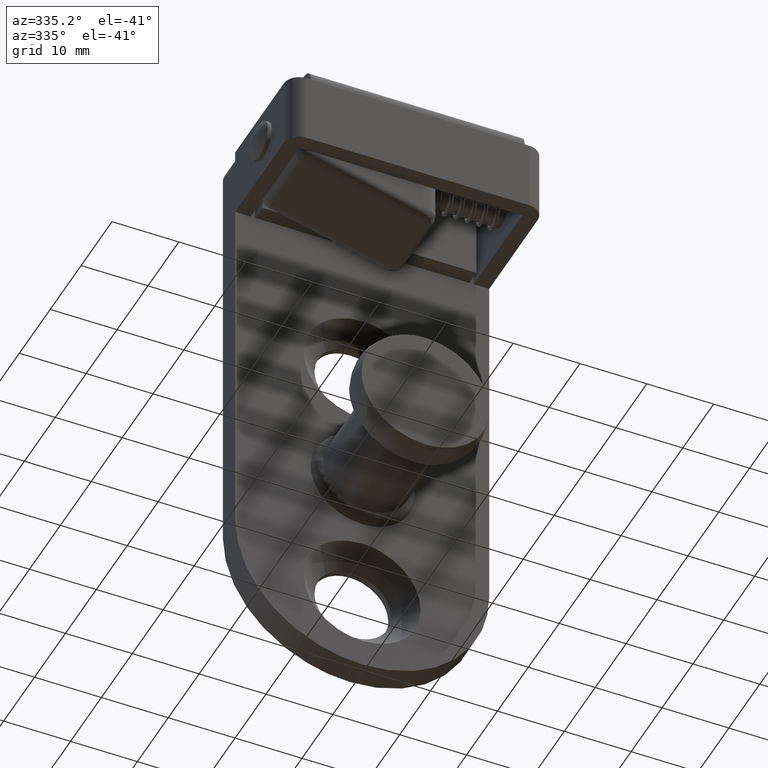
[diagram: clean part render]
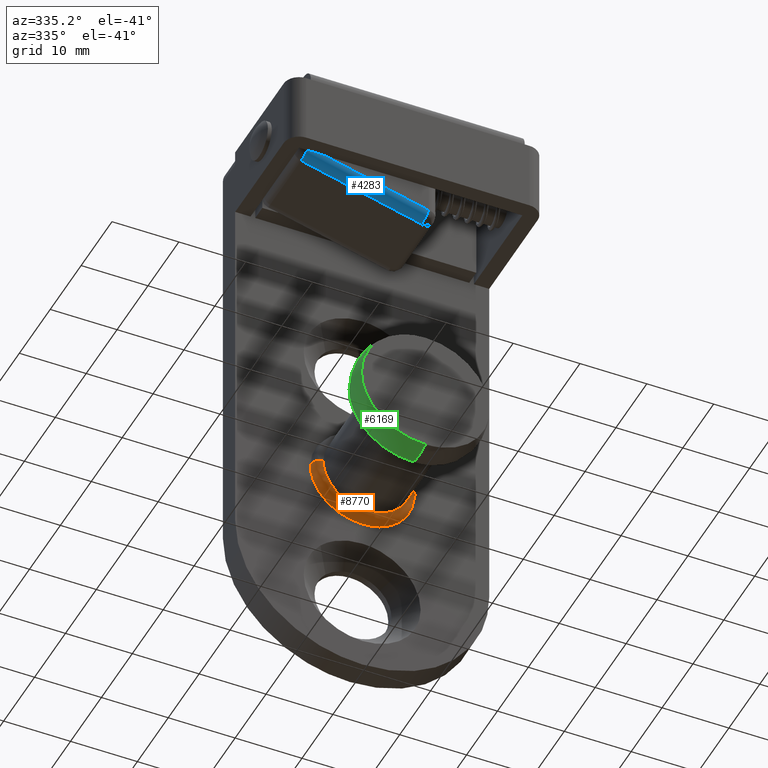
[diagram: same view with three faces highlighted in distinct colors, each labeled with its STEP entity id]
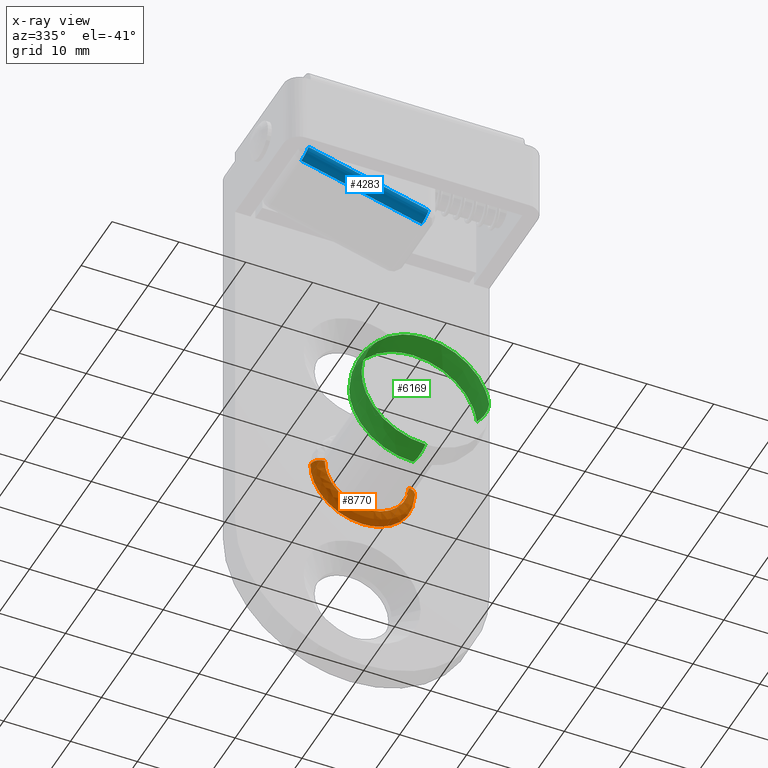
[diagram: x-ray of the same camera — body ghosted, the three highlighted faces saturated]
A machine part, auxiliary view with three faces highlighted in distinct colors.
The next image is the same camera in x-ray (body ghosted, the three faces saturated) — at least one of them is partly hidden behind the body in this view.
Their STEP definitions:

[orange] entity #8770 — the highlighted face is a freeform B-spline surface patch.
#8654=CARTESIAN_POINT('',(7.743903080807956,-20.604586283114802,0.194666501291950));
#8655=CARTESIAN_POINT('',(7.938569582099905,-20.604586283114809,-7.549236579516001));
#8656=CARTESIAN_POINT('',(0.194666501291952,-20.604586283114802,-7.743903080807956));
#8657=CARTESIAN_POINT('',(-7.549236579516001,-20.604586283114809,-7.938569582099905));
#8658=CARTESIAN_POINT('',(-7.743903080807956,-20.604586283114802,-0.194666501291953));
#8659=CARTESIAN_POINT('',(7.864124515082102,-18.883996324391845,0.197688631830806));
#8660=CARTESIAN_POINT('',(8.061813146912911,-18.883996324391852,-7.666435883251293));
#8661=CARTESIAN_POINT('',(0.197688631830808,-18.883996324391845,-7.864124515082102));
#8662=CARTESIAN_POINT('',(-7.666435883251293,-18.883996324391852,-8.061813146912911));
#8663=CARTESIAN_POINT('',(-7.864124515082102,-18.883996324391845,-0.197688631830808));
#8664=CARTESIAN_POINT('',(6.144033042778243,-19.003611483327578,0.154448913394069));
#8665=CARTESIAN_POINT('',(6.298481956172312,-19.003611483327571,-5.989584129384169));
#8666=CARTESIAN_POINT('',(0.154448913394071,-19.003611483327578,-6.144033042778243));
#8667=CARTESIAN_POINT('',(-5.989584129384169,-19.003611483327571,-6.298481956172314));
#8668=CARTESIAN_POINT('',(-6.144033042778243,-19.003611483327578,-0.154448913394071));
#8676=(BOUNDED_SURFACE()B_SPLINE_SURFACE(2,2,((#8654,#8659,#8664),(#8655,#8660,#8665),(#8656,#8661,#8666),(#8657,#8662,#8667),(#8658,#8663,#8668)),.UNSPECIFIED.,.F.,.F.,.U.)B_SPLINE_SURFACE_WITH_KNOTS((3,2,3),(3,3),(0.0,12.834572022482750,25.669144044965510),(0.0,2.733555654692055),.UNSPECIFIED.)GEOMETRIC_REPRESENTATION_ITEM()RATIONAL_B_SPLINE_SURFACE(((0.910892943119429,0.599412915015239,0.915966658337646),(0.644098577014720,0.423848936938071,0.647686235451331),(0.910892943119429,0.599412915015239,0.915966658337646),(0.644098577014720,0.423848936938071,0.647686235451331),(0.910892943119429,0.599412915015239,0.915966658337646)))REPRESENTATION_ITEM('')SURFACE());
#8677=CARTESIAN_POINT('',(0.0,-19.0,-6.250000000000000));
#8678=VERTEX_POINT('',#8677);
#8679=CARTESIAN_POINT('',(6.248026187059553,-19.0,0.157063097178439));
#8680=VERTEX_POINT('',#8679);
#8681=CARTESIAN_POINT('',(0.0,-19.0,-6.250000000000000));
#8682=CARTESIAN_POINT('',(0.363647738622659,-19.000000000000028,-6.250023410204353));
#8683=CARTESIAN_POINT('',(1.194865805139255,-18.999999999999979,-6.177298460048187));
#8684=CARTESIAN_POINT('',(2.348182056223687,-19.0,-5.837255559385980));
#8685=CARTESIAN_POINT('',(3.293281001040213,-19.000000000000039,-5.337545782809442));
#8686=CARTESIAN_POINT('',(4.071308192351541,-18.999999999999979,-4.770730197503986));
#8687=CARTESIAN_POINT('',(4.649883725434911,-19.000000000000011,-4.206287154281666));
#8688=CARTESIAN_POINT('',(5.240359180439091,-18.999999999999989,-3.446455057360705));
#8689=CARTESIAN_POINT('',(5.691863143000726,-19.000000000000011,-2.652781000148939));
#8690=CARTESIAN_POINT('',(6.146127573925424,-19.0,-1.404364202713796));
#8691=CARTESIAN_POINT('',(6.263968059041154,-19.000000000000011,-0.466179734510029));
#8692=CARTESIAN_POINT('',(6.248026187059553,-19.0,0.157063097178439));
#8693=B_SPLINE_CURVE_WITH_KNOTS('',3,(#8681,#8682,#8683,#8684,#8685,#8686,#8687,#8688,#8689,#8690,#8691,#8692),.UNSPECIFIED.,.F.,.U.,(4,1,1,1,1,1,1,1,1,4),(0.000000092122304,1.090952993461634,2.493655821424150,3.584632068724023,4.285975122106478,5.376932615248822,6.000350831900249,7.169253716064120,8.104390393738409,9.974621281504941),.UNSPECIFIED.);
#8694=EDGE_CURVE('',#8678,#8680,#8693,.T.);
#8695=ORIENTED_EDGE('',*,*,#8694,.T.);
#8696=CARTESIAN_POINT('',(7.747552466945573,-20.499999999605251,0.194758239685922));
#8697=VERTEX_POINT('',#8696);
#8698=CARTESIAN_POINT('',(7.747552466945573,-20.499999999605251,0.194758239685922));
#8699=CARTESIAN_POINT('',(7.747602498268306,-20.352736018092791,0.194759497375005));
#8700=CARTESIAN_POINT('',(7.700256743897108,-20.033677197812160,0.193569318195019));
#8701=CARTESIAN_POINT('',(7.476431498184625,-19.588657383701388,0.187942791573186));
#8702=CARTESIAN_POINT('',(7.115701081276010,-19.245186267760989,0.178874738112205));
#8703=CARTESIAN_POINT('',(6.689647096508735,-19.043713103499819,0.168164578585763));
#8704=CARTESIAN_POINT('',(6.395246008304131,-18.999940478670709,0.160763914040518));
#8705=CARTESIAN_POINT('',(6.248026187059553,-19.0,0.157063097178439));
#8706=B_SPLINE_CURVE_WITH_KNOTS('',3,(#8698,#8699,#8700,#8701,#8702,#8703,#8704,#8705),.UNSPECIFIED.,.F.,.U.,(4,1,1,1,1,4),(0.000000184373507,0.441795600038105,0.957252305395147,1.472654178376287,1.914457519521531,2.356253615091244),.UNSPECIFIED.);
#8707=EDGE_CURVE('',#8697,#8680,#8706,.T.);
#8708=ORIENTED_EDGE('',*,*,#8707,.F.);
#8709=CARTESIAN_POINT('',(0.0,-20.500000000000000,-7.750000000000000));
#8710=VERTEX_POINT('',#8709);
#8711=CARTESIAN_POINT('',(0.0,-20.500000000000000,-7.750000000000000));
#8712=CARTESIAN_POINT('',(0.644206839376240,-20.500000000024301,-7.750164745903437));
#8713=CARTESIAN_POINT('',(1.868067146289100,-20.500000000057099,-7.596497234715505));
#8714=CARTESIAN_POINT('',(3.596207942557856,-20.500000000065771,-6.943029406952882));
#8715=CARTESIAN_POINT('',(5.022503330589427,-20.500000000036540,-5.983345671701727));
#8716=CARTESIAN_POINT('',(6.227189920482869,-20.499999999972371,-4.716742551005802));
#8717=CARTESIAN_POINT('',(7.013833907494797,-20.499999999889489,-3.410917319777496));
#8718=CARTESIAN_POINT('',(7.621106304073136,-20.499999999767581,-1.741385816209622));
#8719=CARTESIAN_POINT('',(7.767391067972867,-20.499999999672951,-0.578076465125332));
#8720=CARTESIAN_POINT('',(7.747552466945573,-20.499999999605251,0.194758239685922));
#8721=B_SPLINE_CURVE_WITH_KNOTS('',3,(#8711,#8712,#8713,#8714,#8715,#8716,#8717,#8718,#8719,#8720),.UNSPECIFIED.,.F.,.U.,(4,1,1,1,1,1,1,4),(0.000000067723867,1.932577127547573,3.671909309581551,5.507865291499806,7.053902776464217,8.889876185486379,10.049440573328519,12.368530387100360),.UNSPECIFIED.);
#8722=EDGE_CURVE('',#8710,#8697,#8721,.T.);
#8723=ORIENTED_EDGE('',*,*,#8722,.F.);
#8724=CARTESIAN_POINT('',(-7.747552466945573,-20.499999999605251,-0.194758239685920));
#8725=VERTEX_POINT('',#8724);
#8726=CARTESIAN_POINT('',(-7.747552466945573,-20.499999999605251,-0.194758239685920));
#8727=CARTESIAN_POINT('',(-7.735841853968219,-20.499999999629669,-0.662534714780969));
#8728=CARTESIAN_POINT('',(-7.641743150354124,-20.499999999672021,-1.471475035354460));
#8729=CARTESIAN_POINT('',(-7.296559278134610,-20.499999999736431,-2.705954566221928));
#8730=CARTESIAN_POINT('',(-6.826823123756314,-20.499999999790010,-3.731087190038060));
#8731=CARTESIAN_POINT('',(-6.158250139387877,-20.499999999843279,-4.750185974933385));
#8732=CARTESIAN_POINT('',(-5.451993253101002,-20.499999999884832,-5.546529566200734));
#8733=CARTESIAN_POINT('',(-4.448418067795774,-20.499999999929251,-6.392550793728908));
#8734=CARTESIAN_POINT('',(-3.339243176506296,-20.499999999962899,-7.044433176967031));
#8735=CARTESIAN_POINT('',(-1.777987556215333,-20.499999999992781,-7.603927971450390));
#8736=CARTESIAN_POINT('',(-0.686322905745467,-20.499999999999169,-7.750251968160448));
#8737=CARTESIAN_POINT('',(0.0,-20.500000000000000,-7.750000000000000));
#8738=B_SPLINE_CURVE_WITH_KNOTS('',3,(#8726,#8727,#8728,#8729,#8730,#8731,#8732,#8733,#8734,#8735,#8736,#8737),.UNSPECIFIED.,.F.,.U.,(4,1,1,1,1,1,1,1,1,4),(0.000000065616353,1.403767719297109,2.433222107686204,3.837022643257766,4.772869765925004,6.083049073312272,7.018906436373790,8.703466534979844,9.920091777891081,11.978965564778560),.UNSPECIFIED.);
#8739=EDGE_CURVE('',#8725,#8710,#8738,.T.);
#8740=ORIENTED_EDGE('',*,*,#8739,.F.);
#8741=CARTESIAN_POINT('',(-6.248026187059553,-19.0,-0.157063097178438));
#8742=VERTEX_POINT('',#8741);
#8743=CARTESIAN_POINT('',(-7.747552466945573,-20.499999999605251,-0.194758239685920));
#8744=CARTESIAN_POINT('',(-7.747916670189446,-20.279027370564631,-0.194767395039415));
#8745=CARTESIAN_POINT('',(-7.675777116006493,-19.960264735556240,-0.192953948478430));
#8746=CARTESIAN_POINT('',(-7.466533685867479,-19.611286658526691,-0.187693980031293));
#8747=CARTESIAN_POINT('',(-7.230078610742960,-19.343594653280320,-0.181749964329138));
#8748=CARTESIAN_POINT('',(-6.836745141300082,-19.080682676385290,-0.171862334227229));
#8749=CARTESIAN_POINT('',(-6.456611345321610,-18.999739723792420,-0.162306517964781));
#8750=CARTESIAN_POINT('',(-6.248026187059553,-19.0,-0.157063097178438));
#8751=B_SPLINE_CURVE_WITH_KNOTS('',3,(#8743,#8744,#8745,#8746,#8747,#8748,#8749,#8750),.UNSPECIFIED.,.F.,.U.,(4,1,1,1,1,4),(0.000000184373343,0.662701865398353,0.957252305395032,1.214917340404249,1.730372234608048,2.356253615091245),.UNSPECIFIED.);
#8752=EDGE_CURVE('',#8725,#8742,#8751,.T.);
#8753=ORIENTED_EDGE('',*,*,#8752,.T.);
#8754=CARTESIAN_POINT('',(-6.248026187059553,-19.0,-0.157063097178438));
#8755=CARTESIAN_POINT('',(-6.237347371320497,-18.999999999999989,-0.584603518289695));
#8756=CARTESIAN_POINT('',(-6.146991840802349,-19.000000000000011,-1.286923340059623));
#8757=CARTESIAN_POINT('',(-5.807806684223817,-19.0,-2.396022173269597));
#8758=CARTESIAN_POINT('',(-5.232679727615854,-19.000000000000050,-3.523075896266489));
#8759=CARTESIAN_POINT('',(-4.392187090866992,-18.999999999999972,-4.506103020857964));
#8760=CARTESIAN_POINT('',(-3.478430661201430,-19.000000000000039,-5.221168506076623));
#8761=CARTESIAN_POINT('',(-2.555137154484456,-18.999999999999911,-5.741620912268693));
#8762=CARTESIAN_POINT('',(-1.383613909325025,-19.000000000000110,-6.145580355419567));
#8763=CARTESIAN_POINT('',(-0.477996682075472,-18.999999999999918,-6.250105132582778));
#8764=CARTESIAN_POINT('',(0.0,-19.0,-6.250000000000000));
#8765=B_SPLINE_CURVE_WITH_KNOTS('',3,(#8754,#8755,#8756,#8757,#8758,#8759,#8760,#8761,#8762,#8763,#8764),.UNSPECIFIED.,.F.,.U.,(4,1,1,1,1,1,1,1,4),(0.000000093642633,1.283010057639549,2.113219665626913,3.471743000626955,5.056618023705850,5.962302974472753,6.943447627734304,8.226485653632615,9.660456101892111),.UNSPECIFIED.);
#8766=EDGE_CURVE('',#8742,#8678,#8765,.T.);
#8767=ORIENTED_EDGE('',*,*,#8766,.T.);
#8768=EDGE_LOOP('',(#8695,#8708,#8723,#8740,#8753,#8767));
#8769=FACE_OUTER_BOUND('',#8768,.T.);
#8770=ADVANCED_FACE('',(#8769),#8676,.T.);

[blue] entity #4283 — the highlighted face is a freeform B-spline surface patch.
#4061=CARTESIAN_POINT('',(-2.799999999999900,-4.999999999999800,37.500000518874650));
#4062=VERTEX_POINT('',#4061);
#4157=CARTESIAN_POINT('',(-2.409798649836235,-6.499999999999840,36.051641824928147));
#4158=VERTEX_POINT('',#4157);
#4173=CARTESIAN_POINT('',(-2.409798649836235,-6.499999999999840,36.051641824928147));
#4174=CARTESIAN_POINT('',(-2.409780714139394,-6.352729703697343,36.051575250780068));
#4175=CARTESIAN_POINT('',(-2.419281245891722,-6.107334910080736,36.086839551518302));
#4176=CARTESIAN_POINT('',(-2.454881978228224,-5.776942802803113,36.218983200351829));
#4177=CARTESIAN_POINT('',(-2.502122412138076,-5.512234239072540,36.394331371572861));
#4178=CARTESIAN_POINT('',(-2.563307266737428,-5.293769338844412,36.621438776659083));
#4179=CARTESIAN_POINT('',(-2.659597960714033,-5.071802389040578,36.978852875069180));
#4180=CARTESIAN_POINT('',(-2.742517260797841,-4.999640785844679,37.286634714168351));
#4181=CARTESIAN_POINT('',(-2.799999999999900,-4.999999999999800,37.500000518874650));
#4182=B_SPLINE_CURVE_WITH_KNOTS('',3,(#4173,#4174,#4175,#4176,#4177,#4178,#4179,#4180,#4181),.UNSPECIFIED.,.F.,.U.,(4,1,1,1,1,1,4),(0.000000184366868,0.441795600299064,0.736332833688200,1.067703927126058,1.399000968415164,1.693552169797418,2.356253616518344),.UNSPECIFIED.);
#4183=EDGE_CURVE('',#4158,#4062,#4182,.T.);
#4241=CARTESIAN_POINT('',(16.039829964939930,-6.565429081047842,41.023622541474673));
#4242=CARTESIAN_POINT('',(-2.871420035060055,-6.565429081047842,35.928755286474761));
#4243=CARTESIAN_POINT('',(16.058732971818966,-4.901095894337844,40.953457908924044));
#4244=CARTESIAN_POINT('',(-2.852517028181016,-4.901095894337844,35.858590653924146));
#4245=CARTESIAN_POINT('',(15.626178777448070,-5.002797802366981,42.559022901862562));
#4246=CARTESIAN_POINT('',(-3.285071222551912,-5.002797802366981,37.464155646862672));
#4254=(BOUNDED_SURFACE()B_SPLINE_SURFACE(1,2,((#4241,#4243,#4245),(#4242,#4244,#4246)),.UNSPECIFIED.,.F.,.F.,.U.)B_SPLINE_SURFACE_WITH_KNOTS((2,2),(3,3),(0.0,19.585531621801081),(0.0,2.671372111851235),.UNSPECIFIED.)GEOMETRIC_REPRESENTATION_ITEM()RATIONAL_B_SPLINE_SURFACE(((1.0,0.669130606358859,1.0),(1.0,0.669130606358859,1.0)))REPRESENTATION_ITEM('')SURFACE());
#4255=CARTESIAN_POINT('',(15.590201350163751,-6.499999999999840,40.901009824928053));
#4256=VERTEX_POINT('',#4255);
#4257=CARTESIAN_POINT('',(15.199999999999999,-4.999999999999800,42.349368518874599));
#4258=VERTEX_POINT('',#4257);
#4259=CARTESIAN_POINT('',(15.590201350163751,-6.499999999999840,40.901009824928053));
#4260=CARTESIAN_POINT('',(15.590231640003260,-6.328185119569247,40.900897394378028));
#4261=CARTESIAN_POINT('',(15.574682858486890,-5.984617440391684,40.958611733090613));
#4262=CARTESIAN_POINT('',(15.514010214575499,-5.572891134692486,41.183817902308192));
#4263=CARTESIAN_POINT('',(15.425479434715360,-5.248860064844978,41.512428566106131));
#4264=CARTESIAN_POINT('',(15.321313183279679,-5.047282691286661,41.899075346850402));
#4265=CARTESIAN_POINT('',(15.238306852318489,-4.999963704525126,42.207180229239043));
#4266=CARTESIAN_POINT('',(15.199999999999999,-4.999999999999800,42.349368518874599));
#4267=B_SPLINE_CURVE_WITH_KNOTS('',3,(#4259,#4260,#4261,#4262,#4263,#4264,#4265,#4266),.UNSPECIFIED.,.F.,.U.,(4,1,1,1,1,4),(0.000000184364134,0.515426151925846,1.030868679268119,1.399000968415283,1.914457520683398,2.356253616518462),.UNSPECIFIED.);
#4268=EDGE_CURVE('',#4256,#4258,#4267,.T.);
#4269=ORIENTED_EDGE('',*,*,#4268,.F.);
#4270=CARTESIAN_POINT('',(15.590201350163751,-6.499999999999840,40.901009824928053));
#4271=CARTESIAN_POINT('',(-2.409798649836235,-6.499999999999840,36.051641824928147));
#4272=QUASI_UNIFORM_CURVE('',1,(#4270,#4271),.UNSPECIFIED.,.F.,.U.);
#4273=EDGE_CURVE('',#4256,#4158,#4272,.T.);
#4274=ORIENTED_EDGE('',*,*,#4273,.T.);
#4275=ORIENTED_EDGE('',*,*,#4183,.T.);
#4276=CARTESIAN_POINT('',(-2.799999999999900,-4.999999999999800,37.500000518874650));
#4277=CARTESIAN_POINT('',(15.199999999999999,-4.999999999999800,42.349368518874599));
#4278=QUASI_UNIFORM_CURVE('',1,(#4276,#4277),.UNSPECIFIED.,.F.,.U.);
#4279=EDGE_CURVE('',#4062,#4258,#4278,.T.);
#4280=ORIENTED_EDGE('',*,*,#4279,.T.);
#4281=EDGE_LOOP('',(#4269,#4274,#4275,#4280));
#4282=FACE_OUTER_BOUND('',#4281,.T.);
#4283=ADVANCED_FACE('',(#4282),#4254,.T.);

[green] entity #6169 — the highlighted face is a freeform B-spline surface patch.
#6001=CARTESIAN_POINT('',(-9.427593990260013,0.197785024118212,1.095880118555956));
#6002=CARTESIAN_POINT('',(-9.933116592324145,-0.842183123326224,1.154642955569844));
#6003=CARTESIAN_POINT('',(-9.933116592324142,-2.0,1.154642955569843));
#6004=CARTESIAN_POINT('',(-9.933116592324142,-3.157821938125225,1.154642955569843));
#6005=CARTESIAN_POINT('',(-9.427589795357550,-4.197793653909067,1.095879630933110));
#6006=CARTESIAN_POINT('',(-8.451721901897127,0.197785024118211,9.491073789589512));
#6007=CARTESIAN_POINT('',(-8.904916688624631,-0.842183123326224,10.000000279577609));
#6008=CARTESIAN_POINT('',(-8.904916688624633,-2.000000000000000,10.000000279577611));
#6009=CARTESIAN_POINT('',(-8.904916688624633,-3.157821938125227,10.000000279577613));
#6010=CARTESIAN_POINT('',(-8.451718141218731,-4.197793653909069,9.491069566441073));
#6011=CARTESIAN_POINT('',(0.0,0.197785024118211,9.491073789589512));
#6012=CARTESIAN_POINT('',(0.0,-0.842183123326224,10.000000279577611));
#6013=CARTESIAN_POINT('',(0.0,-2.0,10.000000279577611));
#6014=CARTESIAN_POINT('',(0.0,-3.157821938125226,10.000000279577611));
#6015=CARTESIAN_POINT('',(0.0,-4.197793653909068,9.491069566441073));
#6016=CARTESIAN_POINT('',(9.491073789589510,0.197785024118211,9.491073789589510));
#6017=CARTESIAN_POINT('',(10.000000279577609,-0.842183123326224,10.000000279577609));
#6018=CARTESIAN_POINT('',(10.000000279577609,-2.000000000000000,10.000000279577609));
#6019=CARTESIAN_POINT('',(10.000000279577611,-3.157821938125226,10.000000279577611));
#6020=CARTESIAN_POINT('',(9.491069566441073,-4.197793653909069,9.491069566441073));
#6021=CARTESIAN_POINT('',(9.491073789589512,0.197785024118211,0.0));
#6022=CARTESIAN_POINT('',(10.000000279577611,-0.842183123326224,0.0));
#6023=CARTESIAN_POINT('',(10.000000279577611,-2.0,0.0));
#6024=CARTESIAN_POINT('',(10.000000279577611,-3.157821938125226,0.0));
#6025=CARTESIAN_POINT('',(9.491069566441073,-4.197793653909068,0.0));
#6026=CARTESIAN_POINT('',(9.491073789589510,0.197785024118211,-9.491073789589510));
#6027=CARTESIAN_POINT('',(10.000000279577609,-0.842183123326224,-10.000000279577609));
#6028=CARTESIAN_POINT('',(10.000000279577609,-2.000000000000000,-10.000000279577609));
#6029=CARTESIAN_POINT('',(10.000000279577611,-3.157821938125226,-10.000000279577611));
#6030=CARTESIAN_POINT('',(9.491069566441073,-4.197793653909069,-9.491069566441073));
#6031=CARTESIAN_POINT('',(0.0,0.197785024118211,-9.491073789589512));
#6032=CARTESIAN_POINT('',(0.0,-0.842183123326224,-10.000000279577611));
#6033=CARTESIAN_POINT('',(0.0,-2.0,-10.000000279577611));
#6034=CARTESIAN_POINT('',(0.0,-3.157821938125226,-10.000000279577611));
#6035=CARTESIAN_POINT('',(0.0,-4.197793653909068,-9.491069566441073));
#6043=(BOUNDED_SURFACE()B_SPLINE_SURFACE(2,2,((#6001,#6006,#6011,#6016,#6021,#6026,#6031),(#6002,#6007,#6012,#6017,#6022,#6027,#6032),(#6003,#6008,#6013,#6018,#6023,#6028,#6033),(#6004,#6009,#6014,#6019,#6024,#6029,#6034),(#6005,#6010,#6015,#6020,#6025,#6030,#6035)),.UNSPECIFIED.,.F.,.F.,.U.)B_SPLINE_SURFACE_WITH_KNOTS((3,2,3),(3,2,2,3),(0.0,2.408565126227558,4.817139860176102),(0.0,15.243058810446980,31.811601768590130,48.380144726733292),.UNSPECIFIED.)GEOMETRIC_REPRESENTATION_ITEM()RATIONAL_B_SPLINE_SURFACE(((0.839457697984613,0.640887103040669,0.877280692604679,0.620331126744800,0.877280692604679,0.620331126744800,0.877280692604679),(0.873146664941997,0.666607070216604,0.912487565251705,0.645226145137883,0.912487565251705,0.645226145137883,0.912487565251705),(0.956886097073711,0.730538251261237,1.0,0.707106781186548,1.0,0.707106781186548,1.0),(0.873146330906977,0.666606815196326,0.912487216166249,0.645225898297189,0.912487216166249,0.645225898297189,0.912487216166249),(0.839457429216098,0.640886897848347,0.877280411726406,0.620330928133868,0.877280411726406,0.620330928133868,0.877280411726406)))REPRESENTATION_ITEM('')SURFACE());
#6044=CARTESIAN_POINT('',(0.0,1.332268E-015,9.582576000000001));
#6045=VERTEX_POINT('',#6044);
#6046=CARTESIAN_POINT('',(-9.518482005962820,0.000009646163668,1.106427771368448));
#6047=VERTEX_POINT('',#6046);
#6048=CARTESIAN_POINT('',(0.0,1.332268E-015,9.582576000000001));
#6049=CARTESIAN_POINT('',(-0.580963474674620,0.000000328354320,9.582602913324131));
#6050=CARTESIAN_POINT('',(-1.924497097848563,0.000001149360436,9.460167373555237));
#6051=CARTESIAN_POINT('',(-3.810345442513579,0.000002510171228,8.874244380055661));
#6052=CARTESIAN_POINT('',(-5.427435989750196,0.000003887278528,7.954135447116150));
#6053=CARTESIAN_POINT('',(-6.777841323131711,0.000005208942390,6.844702067845705));
#6054=CARTESIAN_POINT('',(-7.844605193244525,0.000006440521721,5.595728289536494));
#6055=CARTESIAN_POINT('',(-8.647793452491657,0.000007592596517,4.208727028889354));
#6056=CARTESIAN_POINT('',(-9.224193134296934,0.000008650708416,2.753735229824964));
#6057=CARTESIAN_POINT('',(-9.447288800210906,0.000009297306760,1.719594035831562));
#6058=CARTESIAN_POINT('',(-9.518482005962820,0.000009646163668,1.106427771368448));
#6059=B_SPLINE_CURVE_WITH_KNOTS('',3,(#6048,#6049,#6050,#6051,#6052,#6053,#6054,#6055,#6056,#6057,#6058),.UNSPECIFIED.,.F.,.U.,(4,1,1,1,1,1,1,1,4),(0.000000047675796,1.742915152031232,4.030532910760977,5.882411928035331,7.298490880151539,9.259313345171117,10.784384975597870,12.091597122951770,13.943446160038560),.UNSPECIFIED.);
#6060=EDGE_CURVE('',#6045,#6047,#6059,.T.);
#6061=ORIENTED_EDGE('',*,*,#6060,.T.);
#6062=CARTESIAN_POINT('',(-9.518478759921567,-4.000017176094405,1.106427233942358));
#6063=VERTEX_POINT('',#6062);
#6064=CARTESIAN_POINT('',(-9.518482005962820,0.000009646163668,1.106427771368448));
#6065=CARTESIAN_POINT('',(-9.697468114240671,-0.412470819349036,1.127233403605641));
#6066=CARTESIAN_POINT('',(-9.879041109264636,-1.057555048069768,1.148339730635033));
#6067=CARTESIAN_POINT('',(-9.949691801522150,-1.978361075981315,1.156552250055659));
#6068=CARTESIAN_POINT('',(-9.890770264988760,-2.900842948570726,1.149703073808985));
#6069=CARTESIAN_POINT('',(-9.697455116191858,-3.587536494204380,1.127231765608657));
#6070=CARTESIAN_POINT('',(-9.518478759921567,-4.000017176094405,1.106427233942358));
#6071=B_SPLINE_CURVE_WITH_KNOTS('',3,(#6064,#6065,#6066,#6067,#6068,#6069,#6070),.UNSPECIFIED.,.F.,.U.,(4,1,1,1,4),(0.000000029673070,1.350310356833396,1.993328069214779,2.764915393077390,4.115226067514588),.UNSPECIFIED.);
#6072=EDGE_CURVE('',#6047,#6063,#6071,.T.);
#6073=ORIENTED_EDGE('',*,*,#6072,.T.);
#6074=CARTESIAN_POINT('',(0.0,-3.999999999999800,9.582576000000001));
#6075=VERTEX_POINT('',#6074);
#6076=CARTESIAN_POINT('',(0.0,-3.999999999999800,9.582576000000001));
#6077=CARTESIAN_POINT('',(-0.580971482001874,-4.000000584657784,9.582627998743313));
#6078=CARTESIAN_POINT('',(-1.742902129859455,-4.000001849080284,9.476597956897164));
#6079=CARTESIAN_POINT('',(-3.358089043943251,-4.000003879663988,9.024677305745316));
#6080=CARTESIAN_POINT('',(-5.036266895056531,-4.000006282763922,8.227838850246904));
#6081=CARTESIAN_POINT('',(-6.529715780451748,-4.000008787004824,7.110701283121765));
#6082=CARTESIAN_POINT('',(-7.705254697766345,-4.000011175887932,5.765276079837560));
#6083=CARTESIAN_POINT('',(-8.419460619515204,-4.000012917835633,4.623638948621544));
#6084=CARTESIAN_POINT('',(-9.116017215657646,-4.000014945689536,3.143167033849899));
#6085=CARTESIAN_POINT('',(-9.418176796671698,-4.000016299284530,1.972138332948309));
#6086=CARTESIAN_POINT('',(-9.518478759921567,-4.000017176094405,1.106427233942358));
#6087=B_SPLINE_CURVE_WITH_KNOTS('',3,(#6076,#6077,#6078,#6079,#6080,#6081,#6082,#6083,#6084,#6085,#6086),.UNSPECIFIED.,.F.,.U.,(4,1,1,1,1,1,1,1,4),(0.000000047675286,1.742914921783340,3.485861387207214,5.010941308584121,7.298489915992975,9.041436666972910,10.348648834904310,11.329057020581409,13.943444318074620),.UNSPECIFIED.);
#6088=EDGE_CURVE('',#6075,#6063,#6087,.T.);
#6089=ORIENTED_EDGE('',*,*,#6088,.F.);
#6090=CARTESIAN_POINT('',(9.582575999999889,-3.999999999999800,0.000001464843427));
#6091=VERTEX_POINT('',#6090);
#6092=CARTESIAN_POINT('',(9.582575999999889,-3.999999999999800,0.000001464843427));
#6093=CARTESIAN_POINT('',(9.582899188451062,-4.000000005019771,0.862412074109861));
#6094=CARTESIAN_POINT('',(9.422730442543253,-4.000000010929359,2.038198213592213));
#6095=CARTESIAN_POINT('',(8.893303794015329,-4.000000017172665,3.640603673603722));
#6096=CARTESIAN_POINT('',(8.399423978416960,-4.000000020279867,4.668486350553263));
#6097=CARTESIAN_POINT('',(7.693149088666828,-4.000000022487056,5.754085301160639));
#6098=CARTESIAN_POINT('',(6.933985188289487,-4.000000023319475,6.656313795594683));
#6099=CARTESIAN_POINT('',(5.828261722768301,-4.000000022717368,7.658572116379662));
#6100=CARTESIAN_POINT('',(4.540650217610466,-4.000000020099649,8.496256500350071));
#6101=CARTESIAN_POINT('',(3.199833452091845,-4.000000015585056,9.061235297588036));
#6102=CARTESIAN_POINT('',(1.724680597502185,-4.000000009377029,9.469465350785123));
#6103=CARTESIAN_POINT('',(0.705588668242243,-4.000000004106305,9.582729138604321));
#6104=CARTESIAN_POINT('',(0.0,-3.999999999999800,9.582576000000001));
#6105=B_SPLINE_CURVE_WITH_KNOTS('',3,(#6092,#6093,#6094,#6095,#6096,#6097,#6098,#6099,#6100,#6101,#6102,#6103,#6104),.UNSPECIFIED.,.F.,.U.,(4,1,1,1,1,1,1,1,1,1,4),(0.000000020588388,2.587114928052269,3.527896827085398,5.056670593207585,5.997442035912581,7.408596642076708,8.584525795388302,10.466097357902679,11.994863593707210,12.935641575718760,15.052368813936191),.UNSPECIFIED.);
#6106=EDGE_CURVE('',#6091,#6075,#6105,.T.);
#6107=ORIENTED_EDGE('',*,*,#6106,.F.);
#6108=CARTESIAN_POINT('',(0.0,-3.999999888483737,-9.582576048669619));
#6109=VERTEX_POINT('',#6108);
#6110=CARTESIAN_POINT('',(0.0,-3.999999888483737,-9.582576048669619));
#6111=CARTESIAN_POINT('',(0.862382095247857,-3.999999893500096,-9.582849145553251));
#6112=CARTESIAN_POINT('',(2.391018198216236,-3.999999903605251,-9.374807023340550));
#6113=CARTESIAN_POINT('',(4.188450531563323,-3.999999918173057,-8.668622479610953));
#6114=CARTESIAN_POINT('',(5.636950023840875,-3.999999931652971,-7.800458270650166));
#6115=CARTESIAN_POINT('',(6.782172167436340,-3.999999943923862,-6.836806645816597));
#6116=CARTESIAN_POINT('',(7.946274473250614,-3.999999958747220,-5.453367632478222));
#6117=CARTESIAN_POINT('',(8.860015604169162,-3.999999973447991,-3.840624686644397));
#6118=CARTESIAN_POINT('',(9.455156574848745,-3.999999988082465,-1.920706021737097));
#6119=CARTESIAN_POINT('',(9.582639451756904,-3.999999996350792,-0.627173055093966));
#6120=CARTESIAN_POINT('',(9.582575999999889,-3.999999999999800,0.000001464843427));
#6121=B_SPLINE_CURVE_WITH_KNOTS('',3,(#6110,#6111,#6112,#6113,#6114,#6115,#6116,#6117,#6118,#6119,#6120),.UNSPECIFIED.,.F.,.U.,(4,1,1,1,1,1,1,1,4),(0.000000020070845,2.587115216199075,4.586275026906728,5.762236693971731,7.643774570537841,9.054931281377495,11.171681132964270,13.170842105995201,15.052370492597650),.UNSPECIFIED.);
#6122=EDGE_CURVE('',#6109,#6091,#6121,.T.);
#6123=ORIENTED_EDGE('',*,*,#6122,.F.);
#6124=CARTESIAN_POINT('',(0.0,-0.000008299024624,-9.582579621973165));
#6125=VERTEX_POINT('',#6124);
#6126=CARTESIAN_POINT('',(0.0,-0.000008299024624,-9.582579621973165));
#6127=CARTESIAN_POINT('',(0.0,-0.510642173128464,-9.805836749701848));
#6128=CARTESIAN_POINT('',(0.0,-1.459737948207013,-10.041842861351670));
#6129=CARTESIAN_POINT('',(0.0,-2.840320307020003,-9.979539978218659));
#6130=CARTESIAN_POINT('',(0.0,-3.626799595016394,-9.745562943976550));
#6131=CARTESIAN_POINT('',(0.0,-3.999999888483737,-9.582576048669619));
#6132=B_SPLINE_CURVE_WITH_KNOTS('',3,(#6126,#6127,#6128,#6129,#6130,#6131),.UNSPECIFIED.,.F.,.U.,(4,1,1,4),(0.000000029671792,1.671806329538829,2.893487914859023,4.115187624138509),.UNSPECIFIED.);
#6133=EDGE_CURVE('',#6125,#6109,#6132,.T.);
#6134=ORIENTED_EDGE('',*,*,#6133,.F.);
#6135=CARTESIAN_POINT('',(9.582575999999888,-0.000004149511672,-0.000000334003081));
#6136=VERTEX_POINT('',#6135);
#6137=CARTESIAN_POINT('',(0.0,-0.000008299024624,-9.582579621973165));
#6138=CARTESIAN_POINT('',(0.862399564592327,-0.000008299161031,-9.582894629721453));
#6139=CARTESIAN_POINT('',(2.312586032222567,-0.000008213640244,-9.385399230170478));
#6140=CARTESIAN_POINT('',(3.969169598094177,-0.000007941943014,-8.757961677063134));
#6141=CARTESIAN_POINT('',(5.241322118105935,-0.000007638738148,-8.057762712753938));
#6142=CARTESIAN_POINT('',(6.442205507511481,-0.000007253112789,-7.167227939542681));
#6143=CARTESIAN_POINT('',(7.568076225891321,-0.000006728263111,-5.955178787710018));
#6144=CARTESIAN_POINT('',(8.446844857543486,-0.000006143321442,-4.604357622120424));
#6145=CARTESIAN_POINT('',(8.979978986939651,-0.000005631005534,-3.421253036367150));
#6146=CARTESIAN_POINT('',(9.447098581243255,-0.000004964228129,-1.881446455386582));
#6147=CARTESIAN_POINT('',(9.582795530440752,-0.000004489004235,-0.783999429361571));
#6148=CARTESIAN_POINT('',(9.582575999999888,-0.000004149511672,-0.000000334003081));
#6149=B_SPLINE_CURVE_WITH_KNOTS('',3,(#6137,#6138,#6139,#6140,#6141,#6142,#6143,#6144,#6145,#6146,#6147,#6148),.UNSPECIFIED.,.F.,.U.,(4,1,1,1,1,1,1,1,1,4),(0.000000020386778,2.587115524508162,4.351077174307378,5.291865656296727,6.938232202199989,8.819728167623930,10.230900417703900,11.759671807986120,12.700444832853830,15.052372285079640),.UNSPECIFIED.);
#6150=EDGE_CURVE('',#6125,#6136,#6149,.T.);
#6151=ORIENTED_EDGE('',*,*,#6150,.T.);
#6152=CARTESIAN_POINT('',(9.582575999999888,-0.000004149511672,-0.000000334003081));
#6153=CARTESIAN_POINT('',(9.582913880051567,-0.000003776063075,0.862414322774588));
#6154=CARTESIAN_POINT('',(9.412014925674626,-0.000003232979661,2.116571119956886));
#6155=CARTESIAN_POINT('',(8.786029978570657,-0.000002444987926,3.936301138549415));
#6156=CARTESIAN_POINT('',(8.090747644175256,-0.000001889928381,5.218114728730701));
#6157=CARTESIAN_POINT('',(7.100059030244714,-0.000001340268513,6.487458704467311));
#6158=CARTESIAN_POINT('',(6.131270056148274,-0.000000940854579,7.409835797003109));
#6159=CARTESIAN_POINT('',(4.814837654750102,-0.000000539352808,8.337034385179152));
#6160=CARTESIAN_POINT('',(3.358350724866634,-0.000000236293222,9.036897851775327));
#6161=CARTESIAN_POINT('',(1.646319965916406,-0.000000040938534,9.488035565450153));
#6162=CARTESIAN_POINT('',(0.548775982782996,2.019966E-011,9.582622644535764));
#6163=CARTESIAN_POINT('',(0.0,1.332268E-015,9.582576000000001));
#6164=B_SPLINE_CURVE_WITH_KNOTS('',3,(#6152,#6153,#6154,#6155,#6156,#6157,#6158,#6159,#6160,#6161,#6162,#6163),.UNSPECIFIED.,.F.,.U.,(4,1,1,1,1,1,1,1,1,4),(0.000000020897474,2.587115238718770,3.763093284115675,5.762236742301658,6.938231435704916,8.584526825310856,9.760506638349613,11.759670507184991,13.406040044149391,15.052370620164369),.UNSPECIFIED.);
#6165=EDGE_CURVE('',#6136,#6045,#6164,.T.);
#6166=ORIENTED_EDGE('',*,*,#6165,.T.);
#6167=EDGE_LOOP('',(#6061,#6073,#6089,#6107,#6123,#6134,#6151,#6166));
#6168=FACE_OUTER_BOUND('',#6167,.T.);
#6169=ADVANCED_FACE('',(#6168),#6043,.T.);